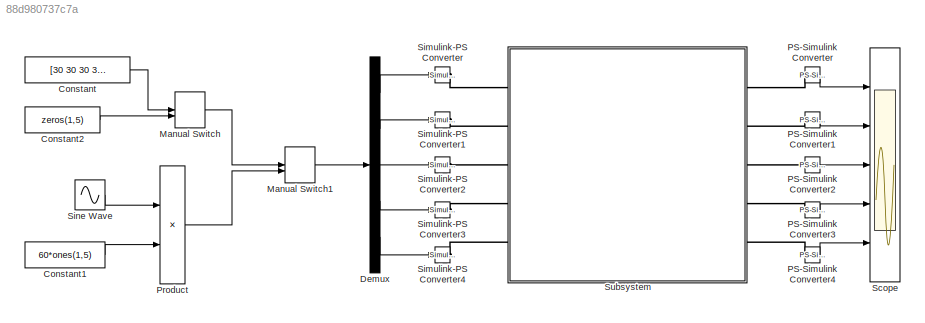
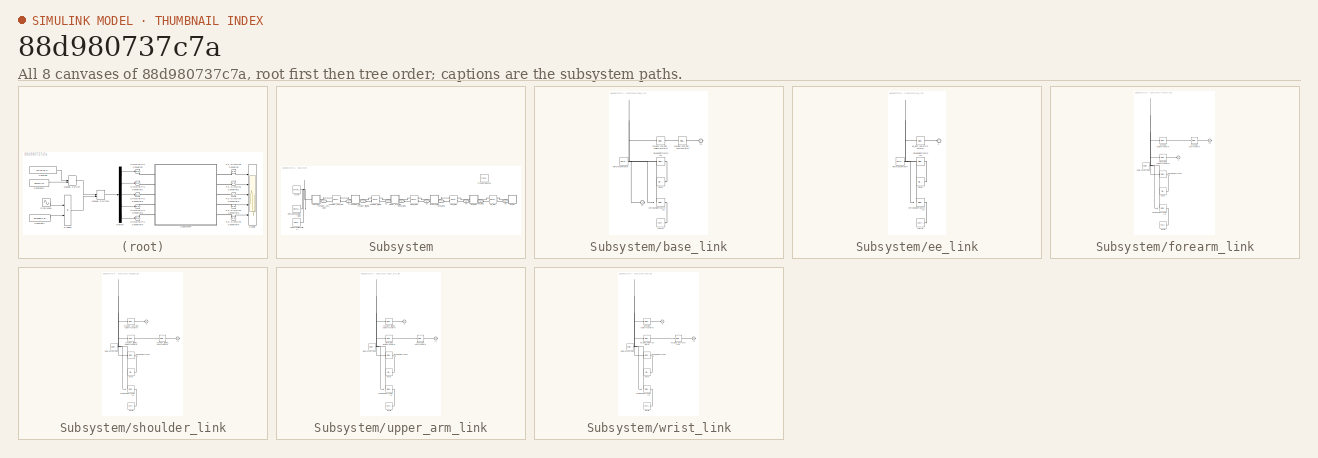
[diagram: thumbnail index - all 8 canvases of the model, root first then tree order]
MODEL slx_88d980737c7a
KIND model
CONFIG AbsTol = auto
CONFIG EnableMultiTasking = off
CONFIG FixedStep = auto
CONFIG MaxStep = auto
CONFIG MinStep = auto
CONFIG RelTol = 1e-3
CONFIG SampleTimeConstraint = Unconstrained
CONFIG Solver = VariableStepAuto
CONFIG SolverName = VariableStepAuto
CONFIG StartTime = 0.0
CONFIG StopTime = 10.0
BLOCK [Constant] Constant
  Value = [30 30 30 30 30]
BLOCK [Constant] Constant1
  Value = 60*ones(1,5)
BLOCK [Constant] Constant2
  Value = zeros(1,5)
BLOCK [Demux] Demux
  Outputs = 5
  Ports = [1, 5]
BLOCK [ManualSwitch] Manual Switch
  CurrentSetting = 0
BLOCK [ManualSwitch] Manual Switch1
  CurrentSetting = 0
BLOCK [Reference] PS-Simulink Converter  REF=nesl_utility/PS-Simulink
Converter
  Ports = [0, 1, 0, 0, 0, 1]
  SourceBlock = nesl_utility/PS-Simulink\nConverter
  SourceProductBaseCode = SS
  SourceType = PS-Simulink\nConverter
BLOCK [Reference] PS-Simulink Converter1  REF=nesl_utility/PS-Simulink
Converter
  Ports = [0, 1, 0, 0, 0, 1]
  SourceBlock = nesl_utility/PS-Simulink\nConverter
  SourceProductBaseCode = SS
  SourceType = PS-Simulink\nConverter
BLOCK [Reference] PS-Simulink Converter2  REF=nesl_utility/PS-Simulink
Converter
  Ports = [0, 1, 0, 0, 0, 1]
  SourceBlock = nesl_utility/PS-Simulink\nConverter
  SourceProductBaseCode = SS
  SourceType = PS-Simulink\nConverter
BLOCK [Reference] PS-Simulink Converter3  REF=nesl_utility/PS-Simulink
Converter
  Ports = [0, 1, 0, 0, 0, 1]
  SourceBlock = nesl_utility/PS-Simulink\nConverter
  SourceProductBaseCode = SS
  SourceType = PS-Simulink\nConverter
BLOCK [Reference] PS-Simulink Converter4  REF=nesl_utility/PS-Simulink
Converter
  Ports = [0, 1, 0, 0, 0, 1]
  SourceBlock = nesl_utility/PS-Simulink\nConverter
  SourceProductBaseCode = SS
  SourceType = PS-Simulink\nConverter
BLOCK [Product] Product
  Ports = [2, 1]
BLOCK [Scope] Scope
  Floating = off
  NumInputPorts = 5
  Ports = [5]
  ScopeSpecificationString = Simulink.scopes.TimeScopeBlockCfg('CurrentConfiguration', extmgr.ConfigurationSet(extmgr.Configuration('Core','General UI',true),extmgr.Configuration('Core','Source UI',true),extmgr.Configuration('Sources','WiredSimulink',true),extmgr.Configuration('Visuals','Time Domain',true,'SerializedDisplays',{struct('MinYLimReal','20','MaxYLimReal','40','YLabelReal','','MinYLimMag','0','MaxYLimMag','10','Leg...<+4710ch>
BLOCK [Reference] Simulink-PS Converter  REF=nesl_utility/Simulink-PS
Converter
  Ports = [1, 0, 0, 0, 0, 0, 1]
  SourceBlock = nesl_utility/Simulink-PS\nConverter
  SourceProductBaseCode = SS
  SourceType = Simulink-PS\nConverter
BLOCK [Reference] Simulink-PS Converter1  REF=nesl_utility/Simulink-PS
Converter
  Ports = [1, 0, 0, 0, 0, 0, 1]
  SourceBlock = nesl_utility/Simulink-PS\nConverter
  SourceProductBaseCode = SS
  SourceType = Simulink-PS\nConverter
BLOCK [Reference] Simulink-PS Converter2  REF=nesl_utility/Simulink-PS
Converter
  Ports = [1, 0, 0, 0, 0, 0, 1]
  SourceBlock = nesl_utility/Simulink-PS\nConverter
  SourceProductBaseCode = SS
  SourceType = Simulink-PS\nConverter
BLOCK [Reference] Simulink-PS Converter3  REF=nesl_utility/Simulink-PS
Converter
  Ports = [1, 0, 0, 0, 0, 0, 1]
  SourceBlock = nesl_utility/Simulink-PS\nConverter
  SourceProductBaseCode = SS
  SourceType = Simulink-PS\nConverter
BLOCK [Reference] Simulink-PS Converter4  REF=nesl_utility/Simulink-PS
Converter
  Ports = [1, 0, 0, 0, 0, 0, 1]
  SourceBlock = nesl_utility/Simulink-PS\nConverter
  SourceProductBaseCode = SS
  SourceType = Simulink-PS\nConverter
BLOCK [Sin] Sine Wave
  Ports = [0, 1]
  SampleTime = 0
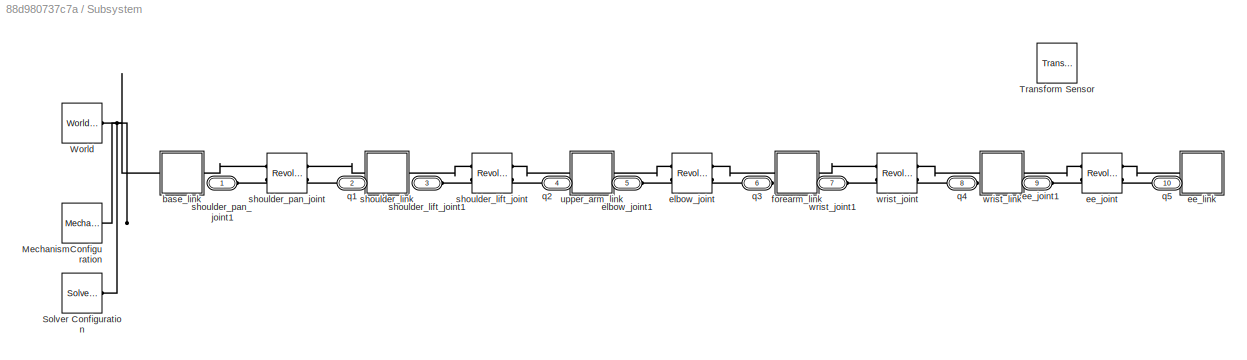
BLOCK [SubSystem] Subsystem
  Ports = [0, 0, 0, 0, 0, 5, 5]
  RequestExecContextInheritance = off
BLOCK [Reference] Subsystem/MechanismConfiguration  REF=sm_lib/Utilities/Mechanism
Configuration
  Ports = [0, 0, 0, 0, 0, 0, 1]
  SourceBlock = sm_lib/Utilities/Mechanism\nConfiguration
  SourceProductBaseCode = MS
  SourceType = Mechanism\nConfiguration
BLOCK [Reference] Subsystem/Solver Configuration  REF=nesl_utility/Solver
Configuration
  Ports = [0, 0, 0, 0, 0, 0, 1]
  SourceBlock = nesl_utility/Solver\nConfiguration
  SourceProductBaseCode = SS
  SourceType = Solver\nConfiguration
BLOCK [Reference] Subsystem/Transform Sensor  REF=sm_lib/Frames and
Transforms/Transform
Sensor
  Ports = [0, 0, 0, 0, 0, 1, 1]
  SourceBlock = sm_lib/Frames and\nTransforms/Transform\nSensor
  SourceProductBaseCode = MS
  SourceType = Transform\nSensor
BLOCK [Reference] Subsystem/World  REF=sm_lib/Frames and
Transforms/World Frame
  Ports = [0, 0, 0, 0, 0, 0, 1]
  SourceBlock = sm_lib/Frames and\nTransforms/World Frame
  SourceProductBaseCode = MS
  SourceType = World Frame
BLOCK [SubSystem] Subsystem/base_link
  Ports = [0, 0, 0, 0, 0, 1, 1]
  RequestExecContextInheritance = off
BLOCK [PMIOPort] Subsystem/base_link/F
  Side = Left
BLOCK [PMIOPort] Subsystem/base_link/F1
  Port = 2
  Side = Right
BLOCK [Reference] Subsystem/base_link/Inertia  REF=sm_lib/Body Elements/Inertia
  Ports = [0, 0, 0, 0, 0, 0, 1]
  SourceBlock = sm_lib/Body Elements/Inertia
  SourceProductBaseCode = MS
  SourceType = Inertia
BLOCK [Reference] Subsystem/base_link/InertiaOriginTransform  REF=sm_lib/Frames and
Transforms/Rigid
Transform
  Ports = [0, 0, 0, 0, 0, 1, 1]
  SourceBlock = sm_lib/Frames and\nTransforms/Rigid\nTransform
  SourceProductBaseCode = MS
  SourceType = Rigid\nTransform
BLOCK [Reference] Subsystem/base_link/ReferenceFrame  REF=sm_lib/Frames and
Transforms/Reference
Frame
  Ports = [0, 0, 0, 0, 0, 0, 1]
  SourceBlock = sm_lib/Frames and\nTransforms/Reference\nFrame
  SourceProductBaseCode = MS
  SourceType = Reference\nFrame
BLOCK [Reference] Subsystem/base_link/Visual  REF=sm_lib/Body Elements/File Solid
  Ports = [0, 0, 0, 0, 0, 0, 1]
  SourceBlock = sm_lib/Body Elements/File Solid
  SourceProductBaseCode = MS
  SourceType = File Solid
BLOCK [Reference] Subsystem/base_link/VisualOriginTransform  REF=sm_lib/Frames and
Transforms/Rigid
Transform
  Ports = [0, 0, 0, 0, 0, 1, 1]
  SourceBlock = sm_lib/Frames and\nTransforms/Rigid\nTransform
  SourceProductBaseCode = MS
  SourceType = Rigid\nTransform
BLOCK [Reference] Subsystem/base_link/shoulder_pan_joint_AxisTransform  REF=sm_lib/Frames and
Transforms/Rigid
Transform
  Ports = [0, 0, 0, 0, 0, 1, 1]
  SourceBlock = sm_lib/Frames and\nTransforms/Rigid\nTransform
  SourceProductBaseCode = MS
  SourceType = Rigid\nTransform
BLOCK [Reference] Subsystem/base_link/shoulder_pan_joint_OriginTransform  REF=sm_lib/Frames and
Transforms/Rigid
Transform
  Ports = [0, 0, 0, 0, 0, 1, 1]
  SourceBlock = sm_lib/Frames and\nTransforms/Rigid\nTransform
  SourceProductBaseCode = MS
  SourceType = Rigid\nTransform
BLOCK [Reference] Subsystem/ee_joint  REF=sm_lib/Joints/Revolute Joint
  Ports = [0, 0, 0, 0, 0, 2, 2]
  SourceBlock = sm_lib/Joints/Revolute Joint
  SourceProductBaseCode = MS
  SourceType = Revolute Joint
BLOCK [PMIOPort] Subsystem/ee_joint1
  Port = 9
  Side = Left
BLOCK [SubSystem] Subsystem/ee_link
  Ports = [0, 0, 0, 0, 0, 1]
  RequestExecContextInheritance = off
BLOCK [PMIOPort] Subsystem/ee_link/F
  Side = Left
BLOCK [Reference] Subsystem/ee_link/Inertia  REF=sm_lib/Body Elements/Inertia
  Ports = [0, 0, 0, 0, 0, 0, 1]
  SourceBlock = sm_lib/Body Elements/Inertia
  SourceProductBaseCode = MS
  SourceType = Inertia
BLOCK [Reference] Subsystem/ee_link/InertiaOriginTransform  REF=sm_lib/Frames and
Transforms/Rigid
Transform
  Ports = [0, 0, 0, 0, 0, 1, 1]
  SourceBlock = sm_lib/Frames and\nTransforms/Rigid\nTransform
  SourceProductBaseCode = MS
  SourceType = Rigid\nTransform
BLOCK [Reference] Subsystem/ee_link/ReferenceFrame  REF=sm_lib/Frames and
Transforms/Reference
Frame
  Ports = [0, 0, 0, 0, 0, 0, 1]
  SourceBlock = sm_lib/Frames and\nTransforms/Reference\nFrame
  SourceProductBaseCode = MS
  SourceType = Reference\nFrame
BLOCK [Reference] Subsystem/ee_link/Visual  REF=sm_lib/Body Elements/File Solid
  Ports = [0, 0, 0, 0, 0, 0, 1]
  SourceBlock = sm_lib/Body Elements/File Solid
  SourceProductBaseCode = MS
  SourceType = File Solid
BLOCK [Reference] Subsystem/ee_link/VisualOriginTransform  REF=sm_lib/Frames and
Transforms/Rigid
Transform
  Ports = [0, 0, 0, 0, 0, 1, 1]
  SourceBlock = sm_lib/Frames and\nTransforms/Rigid\nTransform
  SourceProductBaseCode = MS
  SourceType = Rigid\nTransform
BLOCK [Reference] Subsystem/ee_link/ee_joint_AxisInvTransform  REF=sm_lib/Frames and
Transforms/Rigid
Transform
  Ports = [0, 0, 0, 0, 0, 1, 1]
  SourceBlock = sm_lib/Frames and\nTransforms/Rigid\nTransform
  SourceProductBaseCode = MS
  SourceType = Rigid\nTransform
BLOCK [Reference] Subsystem/elbow_joint  REF=sm_lib/Joints/Revolute Joint
  Ports = [0, 0, 0, 0, 0, 2, 2]
  SourceBlock = sm_lib/Joints/Revolute Joint
  SourceProductBaseCode = MS
  SourceType = Revolute Joint
BLOCK [PMIOPort] Subsystem/elbow_joint1
  Port = 5
  Side = Left
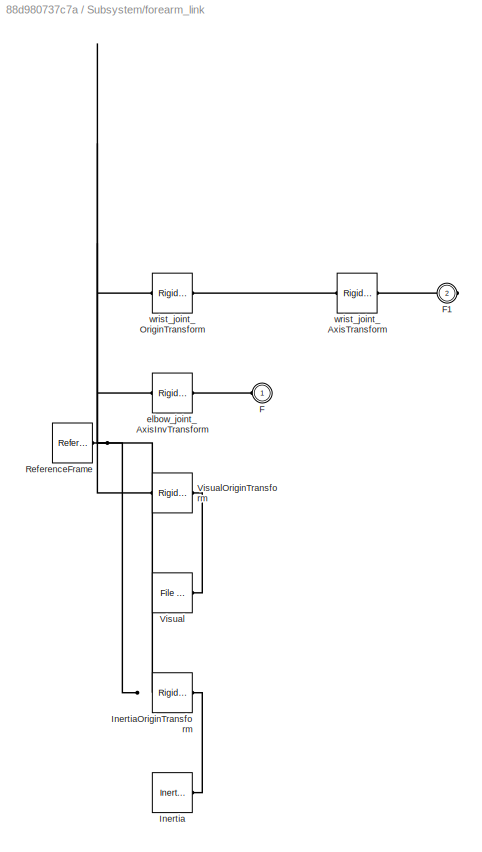
BLOCK [SubSystem] Subsystem/forearm_link
  Ports = [0, 0, 0, 0, 0, 1, 1]
  RequestExecContextInheritance = off
BLOCK [PMIOPort] Subsystem/forearm_link/F
  Side = Left
BLOCK [PMIOPort] Subsystem/forearm_link/F1
  Port = 2
  Side = Right
BLOCK [Reference] Subsystem/forearm_link/Inertia  REF=sm_lib/Body Elements/Inertia
  Ports = [0, 0, 0, 0, 0, 0, 1]
  SourceBlock = sm_lib/Body Elements/Inertia
  SourceProductBaseCode = MS
  SourceType = Inertia
BLOCK [Reference] Subsystem/forearm_link/InertiaOriginTransform  REF=sm_lib/Frames and
Transforms/Rigid
Transform
  Ports = [0, 0, 0, 0, 0, 1, 1]
  SourceBlock = sm_lib/Frames and\nTransforms/Rigid\nTransform
  SourceProductBaseCode = MS
  SourceType = Rigid\nTransform
BLOCK [Reference] Subsystem/forearm_link/ReferenceFrame  REF=sm_lib/Frames and
Transforms/Reference
Frame
  Ports = [0, 0, 0, 0, 0, 0, 1]
  SourceBlock = sm_lib/Frames and\nTransforms/Reference\nFrame
  SourceProductBaseCode = MS
  SourceType = Reference\nFrame
BLOCK [Reference] Subsystem/forearm_link/Visual  REF=sm_lib/Body Elements/File Solid
  Ports = [0, 0, 0, 0, 0, 0, 1]
  SourceBlock = sm_lib/Body Elements/File Solid
  SourceProductBaseCode = MS
  SourceType = File Solid
BLOCK [Reference] Subsystem/forearm_link/VisualOriginTransform  REF=sm_lib/Frames and
Transforms/Rigid
Transform
  Ports = [0, 0, 0, 0, 0, 1, 1]
  SourceBlock = sm_lib/Frames and\nTransforms/Rigid\nTransform
  SourceProductBaseCode = MS
  SourceType = Rigid\nTransform
BLOCK [Reference] Subsystem/forearm_link/elbow_joint_AxisInvTransform  REF=sm_lib/Frames and
Transforms/Rigid
Transform
  Ports = [0, 0, 0, 0, 0, 1, 1]
  SourceBlock = sm_lib/Frames and\nTransforms/Rigid\nTransform
  SourceProductBaseCode = MS
  SourceType = Rigid\nTransform
BLOCK [Reference] Subsystem/forearm_link/wrist_joint_AxisTransform  REF=sm_lib/Frames and
Transforms/Rigid
Transform
  Ports = [0, 0, 0, 0, 0, 1, 1]
  SourceBlock = sm_lib/Frames and\nTransforms/Rigid\nTransform
  SourceProductBaseCode = MS
  SourceType = Rigid\nTransform
BLOCK [Reference] Subsystem/forearm_link/wrist_joint_OriginTransform  REF=sm_lib/Frames and
Transforms/Rigid
Transform
  Ports = [0, 0, 0, 0, 0, 1, 1]
  SourceBlock = sm_lib/Frames and\nTransforms/Rigid\nTransform
  SourceProductBaseCode = MS
  SourceType = Rigid\nTransform
BLOCK [PMIOPort] Subsystem/q1
  Port = 2
  Side = Right
BLOCK [PMIOPort] Subsystem/q2
  Port = 4
  Side = Right
BLOCK [PMIOPort] Subsystem/q3
  Port = 6
  Side = Right
BLOCK [PMIOPort] Subsystem/q4
  Port = 8
  Side = Right
BLOCK [PMIOPort] Subsystem/q5
  Port = 10
  Side = Right
BLOCK [Reference] Subsystem/shoulder_lift_joint  REF=sm_lib/Joints/Revolute Joint
  Ports = [0, 0, 0, 0, 0, 2, 2]
  SourceBlock = sm_lib/Joints/Revolute Joint
  SourceProductBaseCode = MS
  SourceType = Revolute Joint
BLOCK [PMIOPort] Subsystem/shoulder_lift_joint1
  Port = 3
  Side = Left
BLOCK [SubSystem] Subsystem/shoulder_link
  Ports = [0, 0, 0, 0, 0, 1, 1]
  RequestExecContextInheritance = off
BLOCK [PMIOPort] Subsystem/shoulder_link/F
  Side = Left
BLOCK [PMIOPort] Subsystem/shoulder_link/F1
  Port = 2
  Side = Right
BLOCK [Reference] Subsystem/shoulder_link/Inertia  REF=sm_lib/Body Elements/Inertia
  Ports = [0, 0, 0, 0, 0, 0, 1]
  SourceBlock = sm_lib/Body Elements/Inertia
  SourceProductBaseCode = MS
  SourceType = Inertia
BLOCK [Reference] Subsystem/shoulder_link/InertiaOriginTransform  REF=sm_lib/Frames and
Transforms/Rigid
Transform
  Ports = [0, 0, 0, 0, 0, 1, 1]
  SourceBlock = sm_lib/Frames and\nTransforms/Rigid\nTransform
  SourceProductBaseCode = MS
  SourceType = Rigid\nTransform
BLOCK [Reference] Subsystem/shoulder_link/ReferenceFrame  REF=sm_lib/Frames and
Transforms/Reference
Frame
  Ports = [0, 0, 0, 0, 0, 0, 1]
  SourceBlock = sm_lib/Frames and\nTransforms/Reference\nFrame
  SourceProductBaseCode = MS
  SourceType = Reference\nFrame
BLOCK [Reference] Subsystem/shoulder_link/Visual  REF=sm_lib/Body Elements/File Solid
  Ports = [0, 0, 0, 0, 0, 0, 1]
  SourceBlock = sm_lib/Body Elements/File Solid
  SourceProductBaseCode = MS
  SourceType = File Solid
BLOCK [Reference] Subsystem/shoulder_link/VisualOriginTransform  REF=sm_lib/Frames and
Transforms/Rigid
Transform
  Ports = [0, 0, 0, 0, 0, 1, 1]
  SourceBlock = sm_lib/Frames and\nTransforms/Rigid\nTransform
  SourceProductBaseCode = MS
  SourceType = Rigid\nTransform
BLOCK [Reference] Subsystem/shoulder_link/shoulder_lift_joint_AxisTransform  REF=sm_lib/Frames and
Transforms/Rigid
Transform
  Ports = [0, 0, 0, 0, 0, 1, 1]
  SourceBlock = sm_lib/Frames and\nTransforms/Rigid\nTransform
  SourceProductBaseCode = MS
  SourceType = Rigid\nTransform
BLOCK [Reference] Subsystem/shoulder_link/shoulder_lift_joint_OriginTransform  REF=sm_lib/Frames and
Transforms/Rigid
Transform
  Ports = [0, 0, 0, 0, 0, 1, 1]
  SourceBlock = sm_lib/Frames and\nTransforms/Rigid\nTransform
  SourceProductBaseCode = MS
  SourceType = Rigid\nTransform
BLOCK [Reference] Subsystem/shoulder_link/shoulder_pan_joint_AxisInvTransform  REF=sm_lib/Frames and
Transforms/Rigid
Transform
  Ports = [0, 0, 0, 0, 0, 1, 1]
  SourceBlock = sm_lib/Frames and\nTransforms/Rigid\nTransform
  SourceProductBaseCode = MS
  SourceType = Rigid\nTransform
BLOCK [Reference] Subsystem/shoulder_pan_joint  REF=sm_lib/Joints/Revolute Joint
  Ports = [0, 0, 0, 0, 0, 2, 2]
  SourceBlock = sm_lib/Joints/Revolute Joint
  SourceProductBaseCode = MS
  SourceType = Revolute Joint
BLOCK [PMIOPort] Subsystem/shoulder_pan_joint1
  Side = Left
BLOCK [SubSystem] Subsystem/upper_arm_link
  Ports = [0, 0, 0, 0, 0, 1, 1]
  RequestExecContextInheritance = off
BLOCK [PMIOPort] Subsystem/upper_arm_link/F
  Side = Left
BLOCK [PMIOPort] Subsystem/upper_arm_link/F1
  Port = 2
  Side = Right
BLOCK [Reference] Subsystem/upper_arm_link/Inertia  REF=sm_lib/Body Elements/Inertia
  Ports = [0, 0, 0, 0, 0, 0, 1]
  SourceBlock = sm_lib/Body Elements/Inertia
  SourceProductBaseCode = MS
  SourceType = Inertia
BLOCK [Reference] Subsystem/upper_arm_link/InertiaOriginTransform  REF=sm_lib/Frames and
Transforms/Rigid
Transform
  Ports = [0, 0, 0, 0, 0, 1, 1]
  SourceBlock = sm_lib/Frames and\nTransforms/Rigid\nTransform
  SourceProductBaseCode = MS
  SourceType = Rigid\nTransform
BLOCK [Reference] Subsystem/upper_arm_link/ReferenceFrame  REF=sm_lib/Frames and
Transforms/Reference
Frame
  Ports = [0, 0, 0, 0, 0, 0, 1]
  SourceBlock = sm_lib/Frames and\nTransforms/Reference\nFrame
  SourceProductBaseCode = MS
  SourceType = Reference\nFrame
BLOCK [Reference] Subsystem/upper_arm_link/Visual  REF=sm_lib/Body Elements/File Solid
  Ports = [0, 0, 0, 0, 0, 0, 1]
  SourceBlock = sm_lib/Body Elements/File Solid
  SourceProductBaseCode = MS
  SourceType = File Solid
BLOCK [Reference] Subsystem/upper_arm_link/VisualOriginTransform  REF=sm_lib/Frames and
Transforms/Rigid
Transform
  Ports = [0, 0, 0, 0, 0, 1, 1]
  SourceBlock = sm_lib/Frames and\nTransforms/Rigid\nTransform
  SourceProductBaseCode = MS
  SourceType = Rigid\nTransform
BLOCK [Reference] Subsystem/upper_arm_link/elbow_joint_AxisTransform  REF=sm_lib/Frames and
Transforms/Rigid
Transform
  Ports = [0, 0, 0, 0, 0, 1, 1]
  SourceBlock = sm_lib/Frames and\nTransforms/Rigid\nTransform
  SourceProductBaseCode = MS
  SourceType = Rigid\nTransform
BLOCK [Reference] Subsystem/upper_arm_link/elbow_joint_OriginTransform  REF=sm_lib/Frames and
Transforms/Rigid
Transform
  Ports = [0, 0, 0, 0, 0, 1, 1]
  SourceBlock = sm_lib/Frames and\nTransforms/Rigid\nTransform
  SourceProductBaseCode = MS
  SourceType = Rigid\nTransform
BLOCK [Reference] Subsystem/upper_arm_link/shoulder_lift_joint_AxisInvTransform  REF=sm_lib/Frames and
Transforms/Rigid
Transform
  Ports = [0, 0, 0, 0, 0, 1, 1]
  SourceBlock = sm_lib/Frames and\nTransforms/Rigid\nTransform
  SourceProductBaseCode = MS
  SourceType = Rigid\nTransform
BLOCK [Reference] Subsystem/wrist_joint  REF=sm_lib/Joints/Revolute Joint
  Ports = [0, 0, 0, 0, 0, 2, 2]
  SourceBlock = sm_lib/Joints/Revolute Joint
  SourceProductBaseCode = MS
  SourceType = Revolute Joint
BLOCK [PMIOPort] Subsystem/wrist_joint1
  Port = 7
  Side = Left
BLOCK [SubSystem] Subsystem/wrist_link
  Ports = [0, 0, 0, 0, 0, 1, 1]
  RequestExecContextInheritance = off
BLOCK [PMIOPort] Subsystem/wrist_link/F
  Side = Left
BLOCK [PMIOPort] Subsystem/wrist_link/F1
  Port = 2
  Side = Right
BLOCK [Reference] Subsystem/wrist_link/Inertia  REF=sm_lib/Body Elements/Inertia
  Ports = [0, 0, 0, 0, 0, 0, 1]
  SourceBlock = sm_lib/Body Elements/Inertia
  SourceProductBaseCode = MS
  SourceType = Inertia
BLOCK [Reference] Subsystem/wrist_link/InertiaOriginTransform  REF=sm_lib/Frames and
Transforms/Rigid
Transform
  Ports = [0, 0, 0, 0, 0, 1, 1]
  SourceBlock = sm_lib/Frames and\nTransforms/Rigid\nTransform
  SourceProductBaseCode = MS
  SourceType = Rigid\nTransform
BLOCK [Reference] Subsystem/wrist_link/ReferenceFrame  REF=sm_lib/Frames and
Transforms/Reference
Frame
  Ports = [0, 0, 0, 0, 0, 0, 1]
  SourceBlock = sm_lib/Frames and\nTransforms/Reference\nFrame
  SourceProductBaseCode = MS
  SourceType = Reference\nFrame
BLOCK [Reference] Subsystem/wrist_link/Visual  REF=sm_lib/Body Elements/File Solid
  Ports = [0, 0, 0, 0, 0, 0, 1]
  SourceBlock = sm_lib/Body Elements/File Solid
  SourceProductBaseCode = MS
  SourceType = File Solid
BLOCK [Reference] Subsystem/wrist_link/VisualOriginTransform  REF=sm_lib/Frames and
Transforms/Rigid
Transform
  Ports = [0, 0, 0, 0, 0, 1, 1]
  SourceBlock = sm_lib/Frames and\nTransforms/Rigid\nTransform
  SourceProductBaseCode = MS
  SourceType = Rigid\nTransform
BLOCK [Reference] Subsystem/wrist_link/ee_joint_AxisTransform  REF=sm_lib/Frames and
Transforms/Rigid
Transform
  Ports = [0, 0, 0, 0, 0, 1, 1]
  SourceBlock = sm_lib/Frames and\nTransforms/Rigid\nTransform
  SourceProductBaseCode = MS
  SourceType = Rigid\nTransform
BLOCK [Reference] Subsystem/wrist_link/ee_joint_OriginTransform  REF=sm_lib/Frames and
Transforms/Rigid
Transform
  Ports = [0, 0, 0, 0, 0, 1, 1]
  SourceBlock = sm_lib/Frames and\nTransforms/Rigid\nTransform
  SourceProductBaseCode = MS
  SourceType = Rigid\nTransform
BLOCK [Reference] Subsystem/wrist_link/wrist_joint_AxisInvTransform  REF=sm_lib/Frames and
Transforms/Rigid
Transform
  Ports = [0, 0, 0, 0, 0, 1, 1]
  SourceBlock = sm_lib/Frames and\nTransforms/Rigid\nTransform
  SourceProductBaseCode = MS
  SourceType = Rigid\nTransform
LINE Constant1:1 -> Product:2
LINE Constant2:1 -> Manual Switch:2
LINE Constant:1 -> Manual Switch:1
LINE Demux:1 -> Simulink-PS Converter:1
LINE Demux:2 -> Simulink-PS Converter1:1
LINE Demux:3 -> Simulink-PS Converter2:1
LINE Demux:4 -> Simulink-PS Converter3:1
LINE Demux:5 -> Simulink-PS Converter4:1
LINE Manual Switch1:1 -> Demux:1
LINE Manual Switch:1 -> Manual Switch1:1
LINE PS-Simulink Converter1:1 -> Scope:2
LINE PS-Simulink Converter2:1 -> Scope:3
LINE PS-Simulink Converter3:1 -> Scope:4
LINE PS-Simulink Converter4:1 -> Scope:5
LINE PS-Simulink Converter:1 -> Scope:1
LINE Product:1 -> Manual Switch1:2
LINE Sine Wave:1 -> Product:1
PLINE PS-Simulink Converter1:LConn1 -- Subsystem:RConn2
PLINE PS-Simulink Converter2:LConn1 -- Subsystem:RConn3
PLINE PS-Simulink Converter3:LConn1 -- Subsystem:RConn4
PLINE PS-Simulink Converter4:LConn1 -- Subsystem:RConn5
PLINE PS-Simulink Converter:LConn1 -- Subsystem:RConn1
PLINE Simulink-PS Converter1:RConn1 -- Subsystem:LConn2
PLINE Simulink-PS Converter2:RConn1 -- Subsystem:LConn3
PLINE Simulink-PS Converter3:RConn1 -- Subsystem:LConn4
PLINE Simulink-PS Converter4:RConn1 -- Subsystem:LConn5
PLINE Simulink-PS Converter:RConn1 -- Subsystem:LConn1
PNET net1: Subsystem/MechanismConfiguration:RConn1 -- Subsystem/Solver Configuration:RConn1 -- Subsystem/World:RConn1 -- Subsystem/base_link:LConn1
PLINE Subsystem/base_link/F1:RConn1 -- Subsystem/base_link/shoulder_pan_joint_AxisTransform:RConn1
PNET net2: Subsystem/base_link/F:RConn1 -- Subsystem/base_link/InertiaOriginTransform:LConn1 -- Subsystem/base_link/ReferenceFrame:RConn1 -- Subsystem/base_link/VisualOriginTransform:LConn1 -- Subsystem/base_link/shoulder_pan_joint_OriginTransform:LConn1
PLINE Subsystem/base_link/Inertia:RConn1 -- Subsystem/base_link/InertiaOriginTransform:RConn1
PLINE Subsystem/base_link/Visual:RConn1 -- Subsystem/base_link/VisualOriginTransform:RConn1
PLINE Subsystem/base_link/shoulder_pan_joint_AxisTransform:LConn1 -- Subsystem/base_link/shoulder_pan_joint_OriginTransform:RConn1
PLINE Subsystem/base_link:RConn1 -- Subsystem/shoulder_pan_joint:LConn1
PLINE Subsystem/ee_joint1:RConn1 -- Subsystem/ee_joint:LConn2
PLINE Subsystem/ee_joint:LConn1 -- Subsystem/wrist_link:RConn1
PLINE Subsystem/ee_joint:RConn1 -- Subsystem/ee_link:LConn1
PLINE Subsystem/ee_joint:RConn2 -- Subsystem/q5:RConn1
PLINE Subsystem/ee_link/F:RConn1 -- Subsystem/ee_link/ee_joint_AxisInvTransform:RConn1
PLINE Subsystem/ee_link/Inertia:RConn1 -- Subsystem/ee_link/InertiaOriginTransform:RConn1
PNET net3: Subsystem/ee_link/InertiaOriginTransform:LConn1 -- Subsystem/ee_link/ReferenceFrame:RConn1 -- Subsystem/ee_link/VisualOriginTransform:LConn1 -- Subsystem/ee_link/ee_joint_AxisInvTransform:LConn1
PLINE Subsystem/ee_link/Visual:RConn1 -- Subsystem/ee_link/VisualOriginTransform:RConn1
PLINE Subsystem/elbow_joint1:RConn1 -- Subsystem/elbow_joint:LConn2
PLINE Subsystem/elbow_joint:LConn1 -- Subsystem/upper_arm_link:RConn1
PLINE Subsystem/elbow_joint:RConn1 -- Subsystem/forearm_link:LConn1
PLINE Subsystem/elbow_joint:RConn2 -- Subsystem/q3:RConn1
PLINE Subsystem/forearm_link/F1:RConn1 -- Subsystem/forearm_link/wrist_joint_AxisTransform:RConn1
PLINE Subsystem/forearm_link/F:RConn1 -- Subsystem/forearm_link/elbow_joint_AxisInvTransform:RConn1
PLINE Subsystem/forearm_link/Inertia:RConn1 -- Subsystem/forearm_link/InertiaOriginTransform:RConn1
PNET net4: Subsystem/forearm_link/InertiaOriginTransform:LConn1 -- Subsystem/forearm_link/ReferenceFrame:RConn1 -- Subsystem/forearm_link/VisualOriginTransform:LConn1 -- Subsystem/forearm_link/elbow_joint_AxisInvTransform:LConn1 -- Subsystem/forearm_link/wrist_joint_OriginTransform:LConn1
PLINE Subsystem/forearm_link/Visual:RConn1 -- Subsystem/forearm_link/VisualOriginTransform:RConn1
PLINE Subsystem/forearm_link/wrist_joint_AxisTransform:LConn1 -- Subsystem/forearm_link/wrist_joint_OriginTransform:RConn1
PLINE Subsystem/forearm_link:RConn1 -- Subsystem/wrist_joint:LConn1
PLINE Subsystem/q1:RConn1 -- Subsystem/shoulder_pan_joint:RConn2
PLINE Subsystem/q2:RConn1 -- Subsystem/shoulder_lift_joint:RConn2
PLINE Subsystem/q4:RConn1 -- Subsystem/wrist_joint:RConn2
PLINE Subsystem/shoulder_lift_joint1:RConn1 -- Subsystem/shoulder_lift_joint:LConn2
PLINE Subsystem/shoulder_lift_joint:LConn1 -- Subsystem/shoulder_link:RConn1
PLINE Subsystem/shoulder_lift_joint:RConn1 -- Subsystem/upper_arm_link:LConn1
PLINE Subsystem/shoulder_link/F1:RConn1 -- Subsystem/shoulder_link/shoulder_lift_joint_AxisTransform:RConn1
PLINE Subsystem/shoulder_link/F:RConn1 -- Subsystem/shoulder_link/shoulder_pan_joint_AxisInvTransform:RConn1
PLINE Subsystem/shoulder_link/Inertia:RConn1 -- Subsystem/shoulder_link/InertiaOriginTransform:RConn1
PNET net5: Subsystem/shoulder_link/InertiaOriginTransform:LConn1 -- Subsystem/shoulder_link/ReferenceFrame:RConn1 -- Subsystem/shoulder_link/VisualOriginTransform:LConn1 -- Subsystem/shoulder_link/shoulder_lift_joint_OriginTransform:LConn1 -- Subsystem/shoulder_link/shoulder_pan_joint_AxisInvTransform:LConn1
PLINE Subsystem/shoulder_link/Visual:RConn1 -- Subsystem/shoulder_link/VisualOriginTransform:RConn1
PLINE Subsystem/shoulder_link/shoulder_lift_joint_AxisTransform:LConn1 -- Subsystem/shoulder_link/shoulder_lift_joint_OriginTransform:RConn1
PLINE Subsystem/shoulder_link:LConn1 -- Subsystem/shoulder_pan_joint:RConn1
PLINE Subsystem/shoulder_pan_joint1:RConn1 -- Subsystem/shoulder_pan_joint:LConn2
PLINE Subsystem/upper_arm_link/F1:RConn1 -- Subsystem/upper_arm_link/elbow_joint_AxisTransform:RConn1
PLINE Subsystem/upper_arm_link/F:RConn1 -- Subsystem/upper_arm_link/shoulder_lift_joint_AxisInvTransform:RConn1
PLINE Subsystem/upper_arm_link/Inertia:RConn1 -- Subsystem/upper_arm_link/InertiaOriginTransform:RConn1
PNET net6: Subsystem/upper_arm_link/InertiaOriginTransform:LConn1 -- Subsystem/upper_arm_link/ReferenceFrame:RConn1 -- Subsystem/upper_arm_link/VisualOriginTransform:LConn1 -- Subsystem/upper_arm_link/elbow_joint_OriginTransform:LConn1 -- Subsystem/upper_arm_link/shoulder_lift_joint_AxisInvTransform:LConn1
PLINE Subsystem/upper_arm_link/Visual:RConn1 -- Subsystem/upper_arm_link/VisualOriginTransform:RConn1
PLINE Subsystem/upper_arm_link/elbow_joint_AxisTransform:LConn1 -- Subsystem/upper_arm_link/elbow_joint_OriginTransform:RConn1
PLINE Subsystem/wrist_joint1:RConn1 -- Subsystem/wrist_joint:LConn2
PLINE Subsystem/wrist_joint:RConn1 -- Subsystem/wrist_link:LConn1
PLINE Subsystem/wrist_link/F1:RConn1 -- Subsystem/wrist_link/ee_joint_AxisTransform:RConn1
PLINE Subsystem/wrist_link/F:RConn1 -- Subsystem/wrist_link/wrist_joint_AxisInvTransform:RConn1
PLINE Subsystem/wrist_link/Inertia:RConn1 -- Subsystem/wrist_link/InertiaOriginTransform:RConn1
PNET net7: Subsystem/wrist_link/InertiaOriginTransform:LConn1 -- Subsystem/wrist_link/ReferenceFrame:RConn1 -- Subsystem/wrist_link/VisualOriginTransform:LConn1 -- Subsystem/wrist_link/ee_joint_OriginTransform:LConn1 -- Subsystem/wrist_link/wrist_joint_AxisInvTransform:LConn1
PLINE Subsystem/wrist_link/Visual:RConn1 -- Subsystem/wrist_link/VisualOriginTransform:RConn1
PLINE Subsystem/wrist_link/ee_joint_AxisTransform:LConn1 -- Subsystem/wrist_link/ee_joint_OriginTransform:RConn1
note: PNET lines group multi-terminal physical nets as a canonical sorted terminal list (undirected conserving connections); 2-terminal nets keep the pairwise PLINE form
